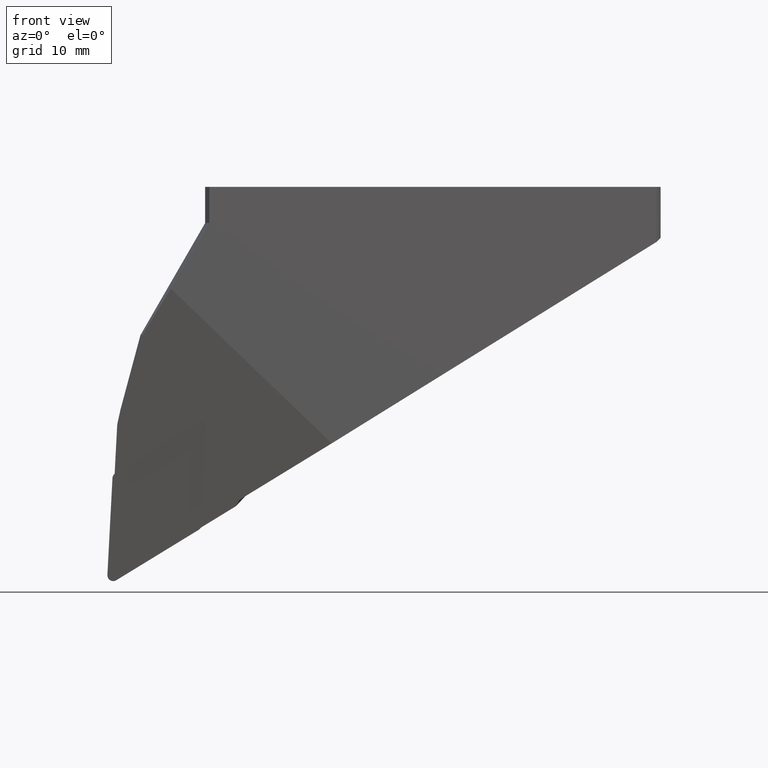
[diagram: clean part render]
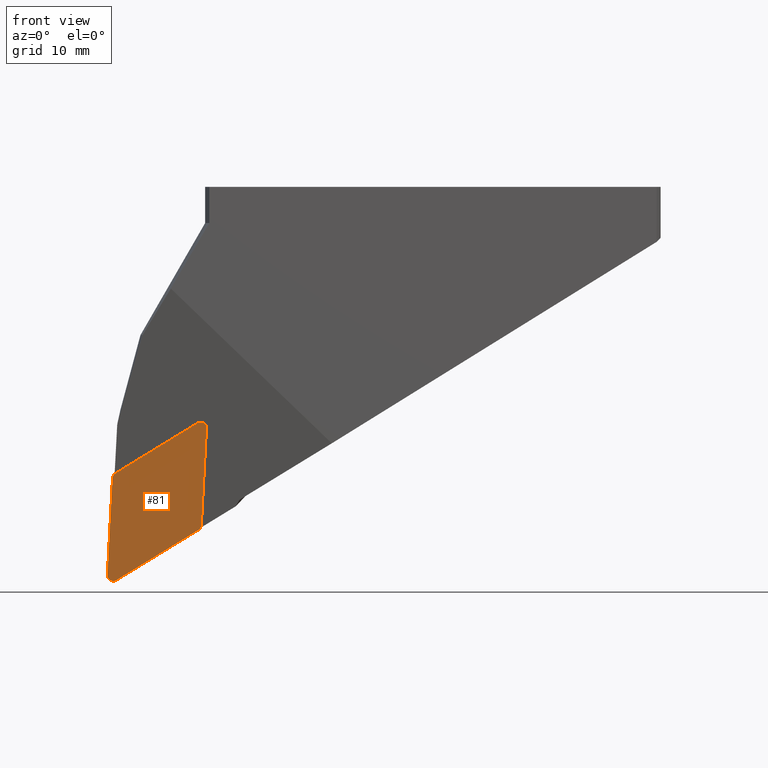
[diagram: same view with one face highlighted and labeled with its STEP entity id]
A machine part, front view. The second image highlights one B-rep face of the part: STEP entity #81.
In plain terms, the highlighted planar face has unit normal (0.1115, 0.987, 0.1159).
Its self-contained STEP definition (entity closure, byte-faithful):
#81=ADVANCED_FACE('',(#118),#119,.F.);
#118=FACE_OUTER_BOUND('',#178,.T.);
#119=PLANE('',#179);
#178=EDGE_LOOP('',(#272,#273,#274,#275,#276,#277,#278,#279,#280,#281));
#179=AXIS2_PLACEMENT_3D('',#282,#283,#284);
#272=ORIENTED_EDGE('',*,*,#479,.F.);
#273=ORIENTED_EDGE('',*,*,#494,.F.);
#274=ORIENTED_EDGE('',*,*,#492,.F.);
#275=ORIENTED_EDGE('',*,*,#490,.F.);
#276=ORIENTED_EDGE('',*,*,#488,.F.);
#277=ORIENTED_EDGE('',*,*,#495,.F.);
#278=ORIENTED_EDGE('',*,*,#496,.F.);
#279=ORIENTED_EDGE('',*,*,#497,.F.);
#280=ORIENTED_EDGE('',*,*,#498,.F.);
#281=ORIENTED_EDGE('',*,*,#499,.F.);
#282=CARTESIAN_POINT('',(-41.3733515886532,-1.23895559129873,-48.8886929033327));
#283=DIRECTION('',(0.111468932180646,0.986981129763168,0.115943635659434));
#284=DIRECTION('',(-3.08228190069457E-018,-0.11667073712445,0.993170649535535));
#479=EDGE_CURVE('',#561,#557,#563,.T.);
#488=EDGE_CURVE('',#577,#579,#580,.T.);
#490=EDGE_CURVE('',#579,#582,#583,.T.);
#492=EDGE_CURVE('',#582,#585,#586,.T.);
#494=EDGE_CURVE('',#585,#561,#588,.T.);
#495=EDGE_CURVE('',#589,#577,#590,.T.);
#496=EDGE_CURVE('',#591,#589,#592,.T.);
#497=EDGE_CURVE('',#593,#591,#594,.T.);
#498=EDGE_CURVE('',#595,#593,#596,.T.);
#499=EDGE_CURVE('',#557,#595,#597,.T.);
#557=VERTEX_POINT('',#689);
#561=VERTEX_POINT('',#694);
#563=CIRCLE('',#697,0.79999999991267);
#577=VERTEX_POINT('',#715);
#579=VERTEX_POINT('',#718);
#580=CIRCLE('',#719,0.800000000088561);
#582=VERTEX_POINT('',#722);
#583=LINE('',#723,#724);
#585=VERTEX_POINT('',#727);
#586=CIRCLE('',#728,0.800000000000001);
#588=LINE('',#731,#732);
#589=VERTEX_POINT('',#733);
#590=CIRCLE('',#734,0.800000000088561);
#591=VERTEX_POINT('',#735);
#592=LINE('',#736,#737);
#593=VERTEX_POINT('',#738);
#594=CIRCLE('',#739,0.799999998553734);
#595=VERTEX_POINT('',#740);
#596=LINE('',#741,#742);
#597=CIRCLE('',#743,0.79999999991267);
#689=CARTESIAN_POINT('',(-44.011115548342,-2.0237020431549,-39.6725020750541));
#694=CARTESIAN_POINT('',(-44.3190822826265,-1.92040501233417,-40.2557466557347));
#697=AXIS2_PLACEMENT_3D('',#932,#933,#934);
#715=CARTESIAN_POINT('',(-32.1064792516071,-2.49153705906962,-47.1352037449178));
#718=CARTESIAN_POINT('',(-32.388353985794,-2.42452718004704,-47.4346355358654));
#719=AXIS2_PLACEMENT_3D('',#949,#950,#951);
#722=CARTESIAN_POINT('',(-43.8079598594797,-0.314517490940271,-54.4174118607371));
#723=CARTESIAN_POINT('',(-43.8079598594797,-0.314517490940269,-54.4174118607371));
#724=VECTOR('',#953,10.0);
#727=CARTESIAN_POINT('',(-45.0232118274401,-0.263168114676728,-53.6861774698233));
#728=AXIS2_PLACEMENT_3D('',#955,#956,#957);
#731=CARTESIAN_POINT('',(-44.3190822826265,-1.92040501233417,-40.2557466557347));
#732=VECTOR('',#959,10.0);
#733=CARTESIAN_POINT('',(-32.0157524389484,-2.54030683517158,-46.8072717495827));
#734=AXIS2_PLACEMENT_3D('',#960,#961,#962);
#735=CARTESIAN_POINT('',(-31.3116228969716,-4.19754373261312,-33.3768409346047));
#736=CARTESIAN_POINT('',(-32.0861198579749,-2.37469031685156,-48.1494463020251));
#737=VECTOR('',#963,10.0);
#738=CARTESIAN_POINT('',(-32.526874862735,-4.14619435644239,-32.645606545013));
#739=AXIS2_PLACEMENT_3D('',#964,#965,#966);
#740=CARTESIAN_POINT('',(-43.9464807358604,-2.03618466743915,-39.6283828695422));
#741=CARTESIAN_POINT('',(-39.3860072977754,-2.87882698344473,-36.8397782271485));
#742=VECTOR('',#967,10.0);
#743=AXIS2_PLACEMENT_3D('',#968,#969,#970);
#932=CARTESIAN_POINT('',(-43.5251555253283,-2.00396952801857,-40.3076819580316));
#933=DIRECTION('',(0.111468932180646,0.986981129763168,0.115943635659434));
#934=DIRECTION('',(-0.52665651322258,-0.0402689242801202,0.849123860704407));
#949=CARTESIAN_POINT('',(-32.8096791964187,-2.4567423194747,-46.7553364472266));
#950=DIRECTION('',(0.111468932180646,0.986981129763168,0.115943635659434));
#951=DIRECTION('',(0.526656513222572,0.0402689242801216,-0.849123860704411));
#953=DIRECTION('',(-0.842738152832031,0.155713400928574,-0.515311306427982));
#955=CARTESIAN_POINT('',(-44.2292850700578,-0.346732630364366,-53.7381127721736));
#956=DIRECTION('',(0.111468932180646,0.986981129763168,0.115943635659434));
#957=DIRECTION('',(-0.99240844672796,0.104455644609549,0.0649191279377818));
#959=DIRECTION('',(0.0519629870340859,-0.122299909242094,0.99113196910294));
#960=CARTESIAN_POINT('',(-32.8096791964187,-2.4567423194747,-46.7553364472266));
#961=DIRECTION('',(0.111468932180646,0.986981129763168,0.115943635659434));
#962=DIRECTION('',(0.526656513222571,0.0402689242801218,-0.849123860704412));
#963=DIRECTION('',(-0.0519629868220282,0.122299909219774,-0.991131969116812));
#964=CARTESIAN_POINT('',(-32.1055496529186,-4.11397921707654,-33.3249056323484));
#965=DIRECTION('',(0.111468932180646,0.986981129763168,0.115943635659434));
#966=DIRECTION('',(0.992408446727965,-0.104455644609561,-0.0649191279376823));
#967=DIRECTION('',(0.842738152832026,-0.155713400928575,0.51531130642799));
#968=CARTESIAN_POINT('',(-43.5251555253283,-2.00396952801857,-40.3076819580316));
#969=DIRECTION('',(0.111468932180646,0.986981129763168,0.115943635659434));
#970=DIRECTION('',(-0.526656513222582,-0.0402689242801198,0.849123860704405));